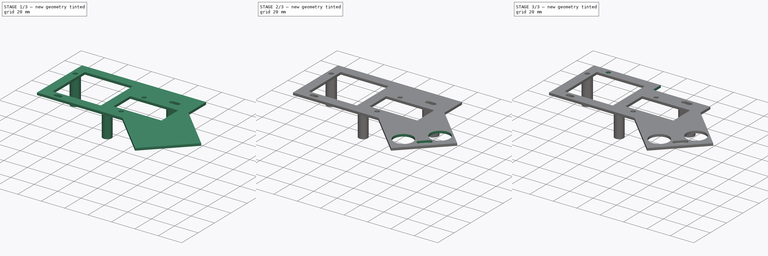
[diagram: build sequence overview — one tinted view per stage of 3, left to right]
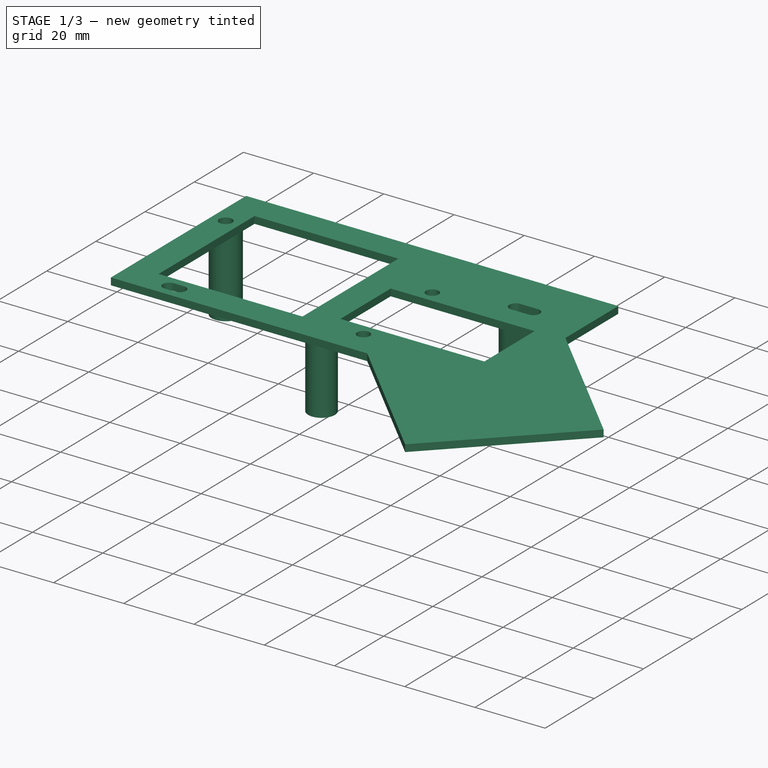
[diagram: stage 1 of 3 — iso view after this stage's code; geometry added in this stage tinted green]
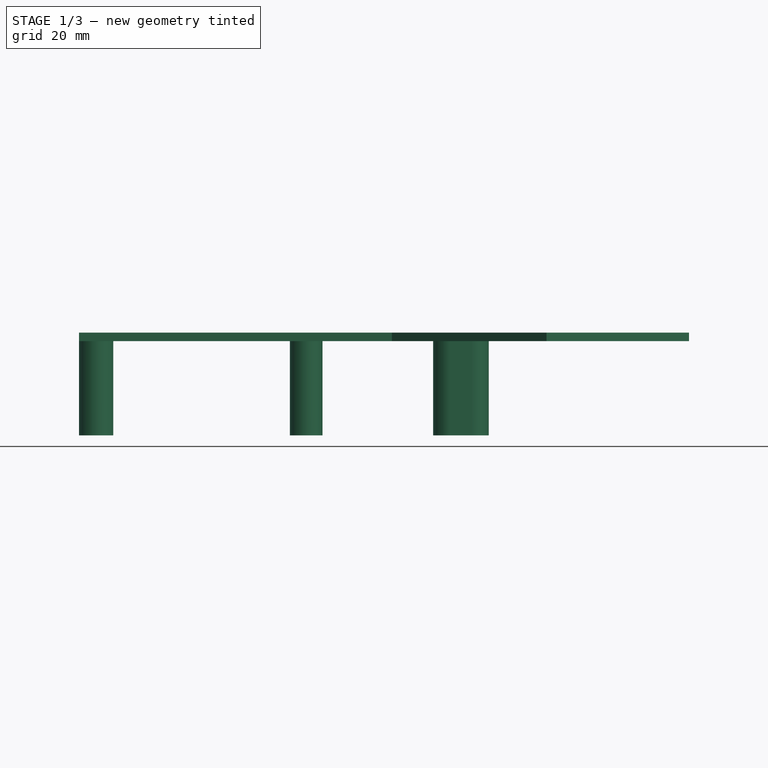
[diagram: stage 1 of 3 — front view after this stage's code; geometry added in this stage tinted green]
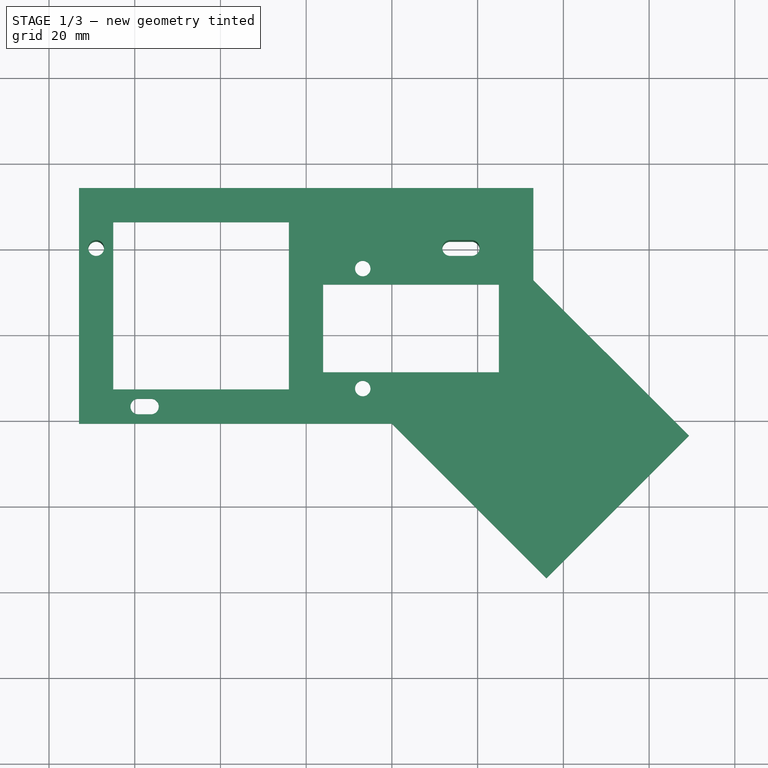
[diagram: stage 1 of 3 — top view after this stage's code; geometry added in this stage tinted green]
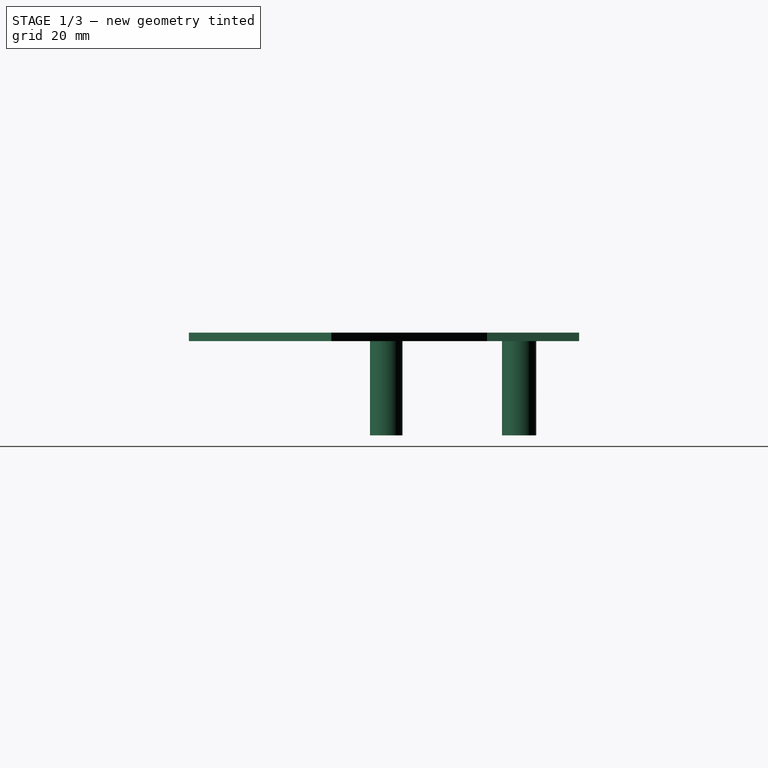
[diagram: stage 1 of 3 — right view after this stage's code; geometry added in this stage tinted green]
FCSTD DOCUMENT  (FreeCAD 0.14R3700 (Git))
Label: arduino platformv6
License: CC-BY 3.0
LicenseURL: http://creativecommons.org/licenses/by/3.0/
objects: Sketcher::SketchObject×5, PartDesign::Pocket×3, PartDesign::Pad×2
note: 15 computed .brp shape members not serialized (recipe doc carries the construction recipe); baked Part::Feature solids carry a one-line shape summary decoded from their .brp

FEATURE [Sketcher::SketchObject] Sketch
  sketch-geometry (27):
    g0: LineSegment StartX=-53 StartY=14 StartZ=0 EndX=53 EndY=14 EndZ=0
    g1: LineSegment StartX=-53 StartY=-41 StartZ=0 EndX=-53 EndY=14 EndZ=0
    g2: LineSegment StartX=-45 StartY=6 StartZ=0 EndX=-4.03755 EndY=6 EndZ=0
    g3: LineSegment StartX=44.9625 StartY=-29 StartZ=0 EndX=3.96245 EndY=-29 EndZ=0
    g4: LineSegment StartX=-45 StartY=-33 StartZ=0 EndX=-45 EndY=6 EndZ=0
    g5: Circle CenterX=-49 CenterY=0 CenterZ=0 NormalX=0 NormalY=0 NormalZ=1 Radius=1.85
    g6: LineSegment StartX=-4.03755 StartY=-33 StartZ=0 EndX=-4.03755 EndY=6 EndZ=0
    g7: LineSegment StartX=-4.03755 StartY=-33 StartZ=0 EndX=-45 EndY=-33 EndZ=0
    g8: LineSegment StartX=53 StartY=-7.5 StartZ=0 EndX=89.3075 EndY=-43.8075 EndZ=0
    g9: LineSegment StartX=89.3075 StartY=-43.8075 StartZ=0 EndX=56.0575 EndY=-77.0575 EndZ=0
    g10: LineSegment StartX=56.0575 StartY=-77.0575 StartZ=0 EndX=20 EndY=-41 EndZ=0
    g11: LineSegment StartX=-53 StartY=-41 StartZ=0 EndX=20 EndY=-41 EndZ=0
    g12: LineSegment StartX=53 StartY=14 StartZ=0 EndX=53 EndY=-7.5 EndZ=0
    g13: LineSegment StartX=3.96245 StartY=-8.537 StartZ=0 EndX=44.9625 EndY=-8.537 EndZ=0
    g14: LineSegment StartX=3.96245 StartY=-8.537 StartZ=0 EndX=3.96245 EndY=-29 EndZ=0
    g15: LineSegment StartX=44.9625 StartY=-8.537 StartZ=0 EndX=44.9625 EndY=-29 EndZ=0
    g16: GeomPoint [constr] X=21.1337 Y=29.9692 Z=0
    g17: ArcOfCircle CenterX=-39.2 CenterY=-37 CenterZ=0 NormalX=0 NormalY=0 NormalZ=1 Radius=1.8 StartAngle=1.5708 EndAngle=4.71239
    g18: ArcOfCircle CenterX=-36.2 CenterY=-37 CenterZ=0 NormalX=0 NormalY=0 NormalZ=1 Radius=1.8 StartAngle=4.71239 EndAngle=7.85398
    g19: LineSegment StartX=-39.2 StartY=-38.8 StartZ=0 EndX=-36.2 EndY=-38.8 EndZ=0
    g20: LineSegment StartX=-39.2 StartY=-35.2 StartZ=0 EndX=-36.2 EndY=-35.2 EndZ=0
    g21: Circle CenterX=13.2 CenterY=-32.8 CenterZ=0 NormalX=0 NormalY=0 NormalZ=1 Radius=1.8
    g22: Circle CenterX=13.2 CenterY=-4.8 CenterZ=0 NormalX=0 NormalY=0 NormalZ=1 Radius=1.8
    g23: ArcOfCircle CenterX=33.6 CenterY=0 CenterZ=0 NormalX=0 NormalY=0 NormalZ=1 Radius=1.85 StartAngle=1.5708 EndAngle=4.71239
    g24: ArcOfCircle CenterX=38.6 CenterY=0 CenterZ=0 NormalX=0 NormalY=0 NormalZ=1 Radius=1.85 StartAngle=4.71239 EndAngle=7.85398
    g25: LineSegment StartX=33.6 StartY=-1.85 StartZ=0 EndX=38.6 EndY=-1.85 EndZ=0
    g26: LineSegment StartX=33.6 StartY=1.85 StartZ=0 EndX=38.6 EndY=1.85 EndZ=0
  constraints (83):
    c: Coincident(g1,g0)
    c: Horizontal(g0)
    c: Vertical(g1)
    c: DistanceX(g0,g0) = 106
    c: DistanceX(g-1,g1) = -53
    c: Coincident(g7,g4)
    c: Coincident(g4,g2)
    c: Horizontal(g2)
    c: Horizontal(g3)
    c: Vertical(g4)
    c: DistanceX(g7,g1) = -8
    c: DistanceY(g1,g7) = 8
    c: DistanceY(g-1,g0) = 14
    c: Radius(g5) = 1.85
    c: DistanceX(g5,g2) = 4
    c: DistanceY(g-1,g5) = 0
    c: Vertical(g6)
    c: Equal(g4,g6)
    c: Equal(g7,g2)
    c: DistanceY(g2,g0) = 8
    c: DistanceX(g6,g3) = 8
    c: Coincident(g8,g9)
    c: Coincident(g9,g10)
    c: Angle(g9,g10) = 1.5708
    c: Horizontal(g7)
    c: Coincident(g6,g7)
    c: DistanceY(g0,g1) = -55
    c: Coincident(g10,g11)
    c: Coincident(g1,g11)
    c: Coincident(g8,g12)
    c: Coincident(g0,g12)
    c: Angle(g8,g12) = 2.35619
    c: Vertical(g12)
    c: Horizontal(g13)
    c: Vertical(g14)
    c: Coincident(g3,g14)
    c: Coincident(g3,g15)
    c: Coincident(g13,g15)
    c: Tangent(g17,g19)
    c: Tangent(g17,g20)
    c: Tangent(g18,g19)
    c: Tangent(g18,g20)
    c: Coincident(g17,g20)
    c: Coincident(g17,g19)
    c: Coincident(g19,g18)
    c: Coincident(g20,g18)
    c: Horizontal(g19)
    c: Equal(g17,g18)
    c: Radius(g17) = 1.8
    c: DistanceX(g1,g17) = 13.8
    c: DistanceX(g17,g18) = 3
    c: Radius(g21) = 1.8
    c: DistanceY(g21,g10) = -8.2
    c: DistanceX(g17,g21) = 52.4
    c: Radius(g22) = 1.8
    c: DistanceY(g21,g22) = 28
    c: DistanceX(g21,g22) = 0
    c: Coincident(g13,g14)
    c: DistanceY(g13,g3) = -20.463
    c: Vertical(g15)
    c: Equal(g14,g15)
    c: Equal(g13,g3)
    c: DistanceX(g13,g13) = 41
    c: Horizontal(g11)
    c: DistanceY(g8,g0) = 21.5
    c: DistanceX(g1,g10) = 73
    c: Angle(g11,g10) = 2.35619
    c: Tangent(g23,g25)
    c: Tangent(g23,g26)
    c: Tangent(g24,g25)
    c: Tangent(g24,g26)
    c: Coincident(g23,g26)
    c: Coincident(g23,g25)
    c: Coincident(g25,g24)
    c: Coincident(g26,g24)
    c: Horizontal(g25)
    c: Equal(g23,g24)
    c: Radius(g24) = 1.85
    c: DistanceX(g23,g24) = 5
    c: DistanceX(g24,g5) = -87.6
    c: DistanceY(g23,g5) = 0
    c: DistanceY(g17,g22) = 32.2
    c: DistanceY(g3,g1) = -12
FEATURE [PartDesign::Pad] Pad
  Length = 2
  Length2 = 20
  Sketch = -> Sketch
  Type = 0
FEATURE [Sketcher::SketchObject] Sketch001
  Placement = pos=(0,0,0) rot=(1,0,0;3.14159rad)
  Support = -> Pad [Face27]
  sketch-geometry (11):
    g0: Circle CenterX=0 CenterY=31 CenterZ=0 NormalX=0 NormalY=0 NormalZ=1 Radius=3.8
    g1: Circle CenterX=-49 CenterY=0 CenterZ=0 NormalX=0 NormalY=0 NormalZ=1 Radius=4
    g2: Circle CenterX=-49 CenterY=0 CenterZ=0 NormalX=0 NormalY=0 NormalZ=1 Radius=1.85
    g3: ArcOfCircle CenterX=33.6 CenterY=0 CenterZ=0 NormalX=0 NormalY=0 NormalZ=1 Radius=1.85 StartAngle=1.5708 EndAngle=4.71239
    g4: ArcOfCircle CenterX=38.6 CenterY=0 CenterZ=0 NormalX=0 NormalY=0 NormalZ=1 Radius=1.85 StartAngle=4.71238 EndAngle=7.85399
    g5: LineSegment StartX=33.6 StartY=-1.85 StartZ=0 EndX=38.6 EndY=-1.85 EndZ=0
    g6: LineSegment StartX=33.6 StartY=1.85 StartZ=0 EndX=38.6 EndY=1.85 EndZ=0
    g7: ArcOfCircle CenterX=33.6 CenterY=0 CenterZ=0 NormalX=0 NormalY=0 NormalZ=1 Radius=4 StartAngle=1.5708 EndAngle=4.71239
    g8: ArcOfCircle CenterX=38.6 CenterY=0 CenterZ=0 NormalX=0 NormalY=0 NormalZ=1 Radius=4 StartAngle=4.71239 EndAngle=7.85398
    g9: LineSegment StartX=33.6 StartY=-4 StartZ=0 EndX=38.6 EndY=-4 EndZ=0
    g10: LineSegment StartX=33.6 StartY=4 StartZ=0 EndX=38.6 EndY=4 EndZ=0
  constraints (35):
    c: Radius(g0) = 3.8
    c: DistanceY(g-1,g0) = 31
    c: DistanceX(g-1,g0) = 0
    c: Radius(g1) = 4
    c: Radius(g2) = 1.85
    c: Coincident(g2,g1)
    c: DistanceX(g1) = -49
    c: DistanceY(g1) = 0
    c: Tangent(g3,g5)
    c: Tangent(g3,g6)
    c: Tangent(g4,g5)
    c: Tangent(g4,g6)
    c: Coincident(g3,g6)
    c: Coincident(g3,g5)
    c: Coincident(g5,g4)
    c: Coincident(g6,g4)
    c: Horizontal(g5)
    c: Equal(g3,g4)
    c: DistanceX(g3,g4) = 5
    c: Radius(g3) = 1.85
    c: Tangent(g7,g9)
    c: Tangent(g7,g10)
    c: Tangent(g8,g9)
    c: Tangent(g8,g10)
    c: Coincident(g7,g10)
    c: Coincident(g7,g9)
    c: Coincident(g9,g8)
    c: Coincident(g10,g8)
    c: Horizontal(g9)
    c: Equal(g7,g8)
    c: Radius(g8) = 4
    c: DistanceX(g8,g7) = -5
    c: Coincident(g7,g3)
    c: DistanceX(g4,g1) = -87.6
    c: DistanceY(g3,g1) = 0
FEATURE [PartDesign::Pad] Pad001
  Length = 22
  Length2 = 20
  Sketch = -> Sketch001
  Type = 0
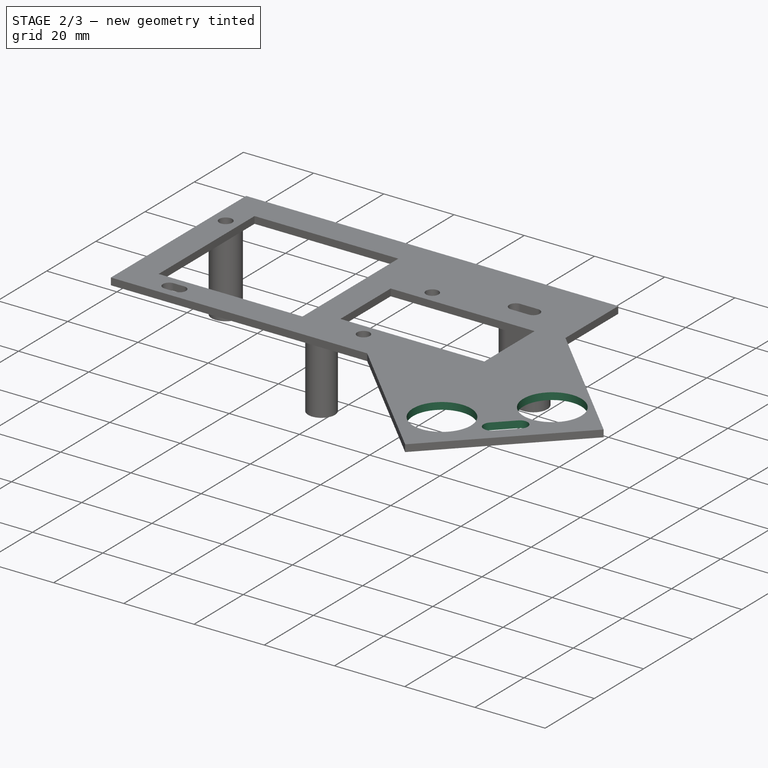
[diagram: stage 2 of 3 — iso view after this stage's code; geometry added in this stage tinted green]
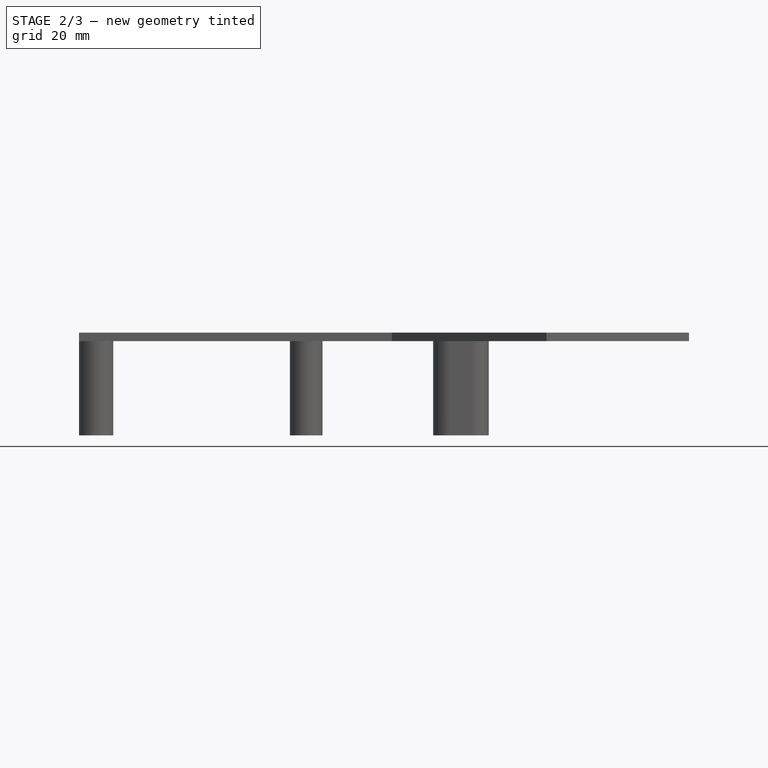
[diagram: stage 2 of 3 — front view after this stage's code; geometry added in this stage tinted green]
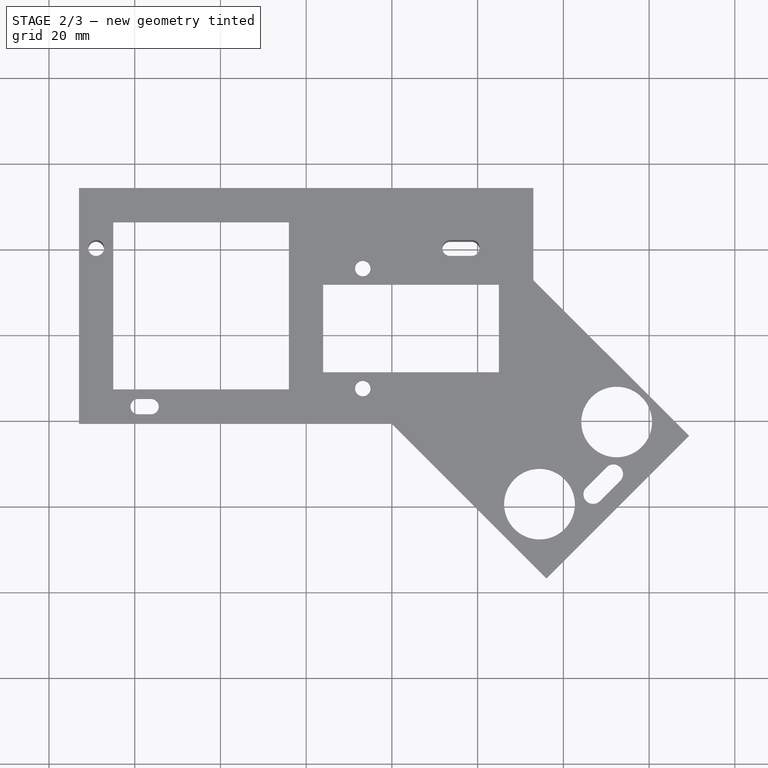
[diagram: stage 2 of 3 — top view after this stage's code; geometry added in this stage tinted green]
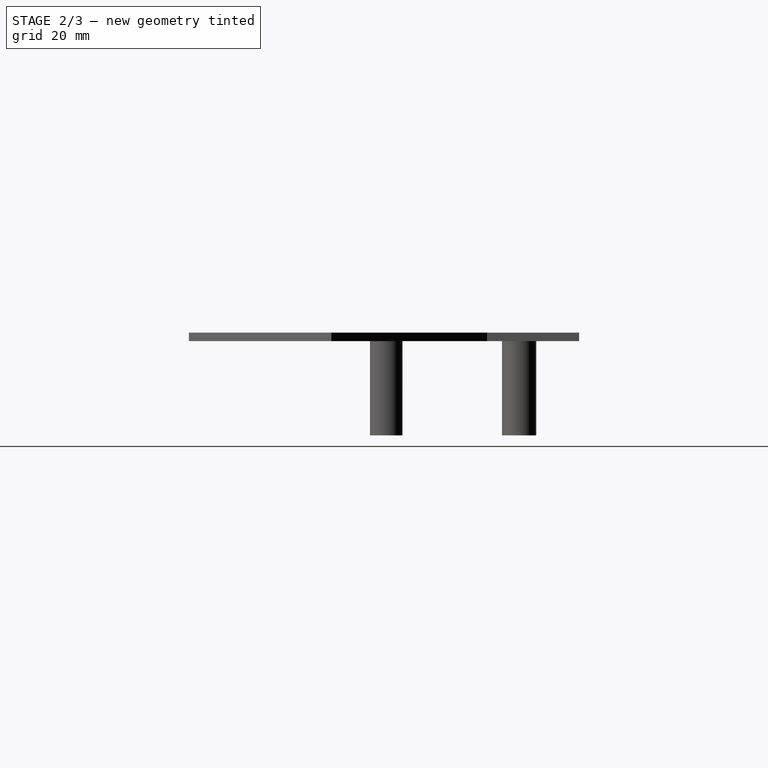
[diagram: stage 2 of 3 — right view after this stage's code; geometry added in this stage tinted green]
FEATURE [Sketcher::SketchObject] Sketch002
  Placement = pos=(0,0,2) rot=(0,0,1;0rad)
  Support = -> Pad001 [Face5]
  sketch-geometry (8):
    g0: Circle CenterX=54.4328 CenterY=-59.7562 CenterZ=0 NormalX=0 NormalY=0 NormalZ=1 Radius=8.25
    g1: Circle CenterX=72.4338 CenterY=-40.5819 CenterZ=0 NormalX=0 NormalY=0 NormalZ=1 Radius=8.25
    g2: ArcOfCircle CenterX=66.9328 CenterY=-57.4562 CenterZ=0 NormalX=0 NormalY=0 NormalZ=1 Radius=2.25 StartAngle=2.35619 EndAngle=5.49779
    g3: ArcOfCircle CenterX=71.6704 CenterY=-52.7186 CenterZ=0 NormalX=0 NormalY=0 NormalZ=1 Radius=2.25 StartAngle=5.49779 EndAngle=8.63938
    g4: LineSegment StartX=68.5238 StartY=-59.0472 StartZ=0 EndX=73.2614 EndY=-54.3096 EndZ=0
    g5: LineSegment StartX=65.3418 StartY=-55.8652 StartZ=0 EndX=70.0794 EndY=-51.1276 EndZ=0
    g6: LineSegment [constr] StartX=66.9328 StartY=-57.4562 StartZ=0 EndX=71.6704 EndY=-52.7186 EndZ=0
    g7: LineSegment [constr] StartX=66.9328 StartY=-57.4562 StartZ=0 EndX=90.4603 EndY=-57.4562 EndZ=0
  constraints (24):
    c: DistanceX(g0) = 54.4328
    c: DistanceY(g0) = -59.7562
    c: Radius(g0) = 8.25
    c: Radius(g1) = 8.25
    c: Tangent(g2,g4)
    c: Tangent(g2,g5)
    c: Tangent(g3,g4)
    c: Tangent(g3,g5)
    c: Coincident(g2,g5)
    c: Coincident(g2,g4)
    c: Coincident(g4,g3)
    c: Coincident(g5,g3)
    c: Equal(g2,g3)
    c: Distance(g2,g3) = 6.7
    c: Radius(g2) = 2.25
    c: Angle(g7,g6) = 0.785398
    c: Horizontal(g7)
    c: Coincident(g6,g7)
    c: Coincident(g2,g6)
    c: Coincident(g3,g6)
    c: DistanceY(g0,g2) = 2.3
    c: DistanceX(g0,g2) = 12.5
    c: DistanceX(g0,g1) = 18.001
    c: DistanceY(g1,g0) = -19.1743
FEATURE [PartDesign::Pocket] Pocket
  Length = 5
  Sketch = -> Sketch002
  Type = 0
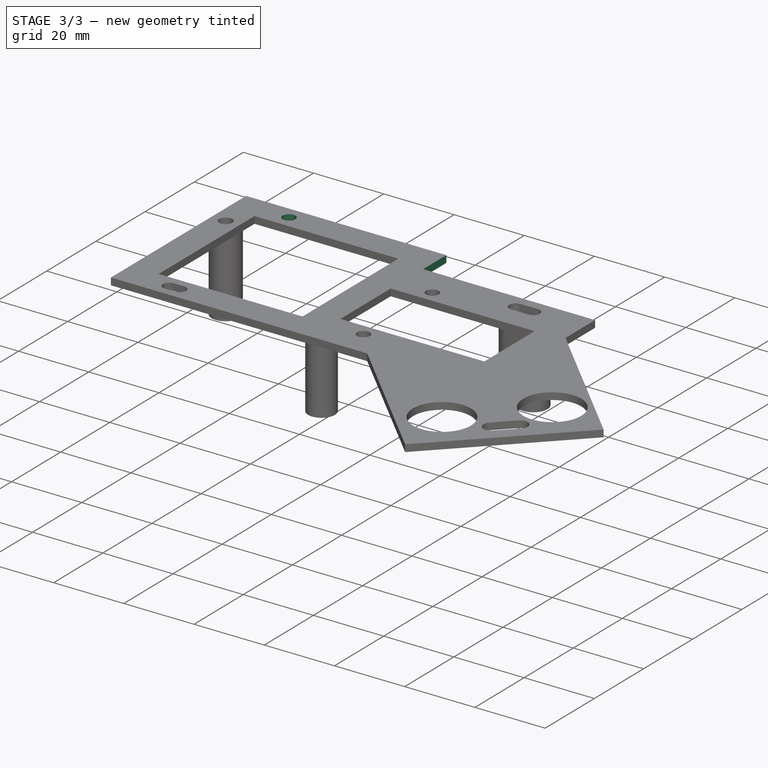
[diagram: stage 3 of 3 — iso view after this stage's code; geometry added in this stage tinted green]
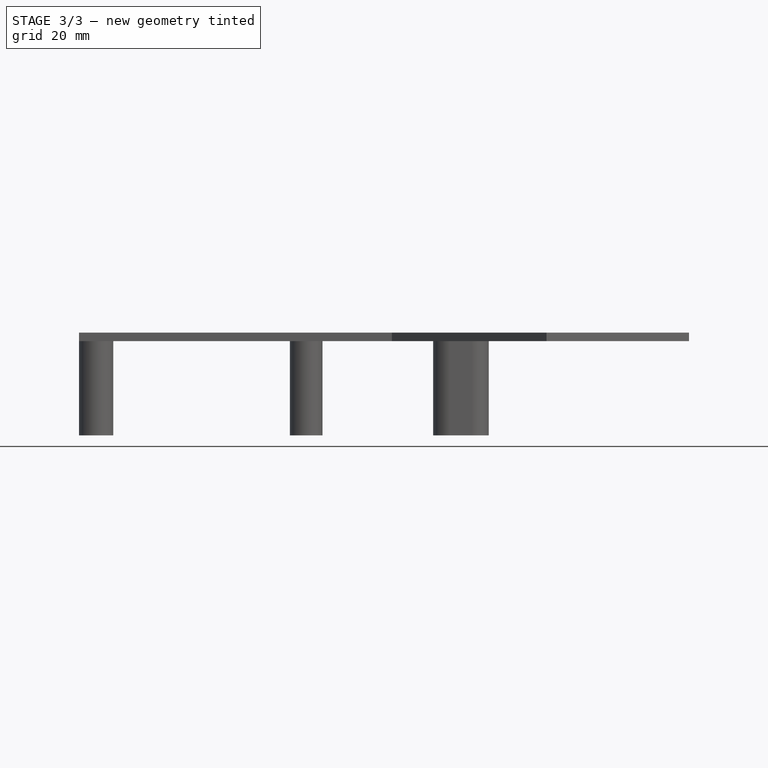
[diagram: stage 3 of 3 — front view after this stage's code; geometry added in this stage tinted green]
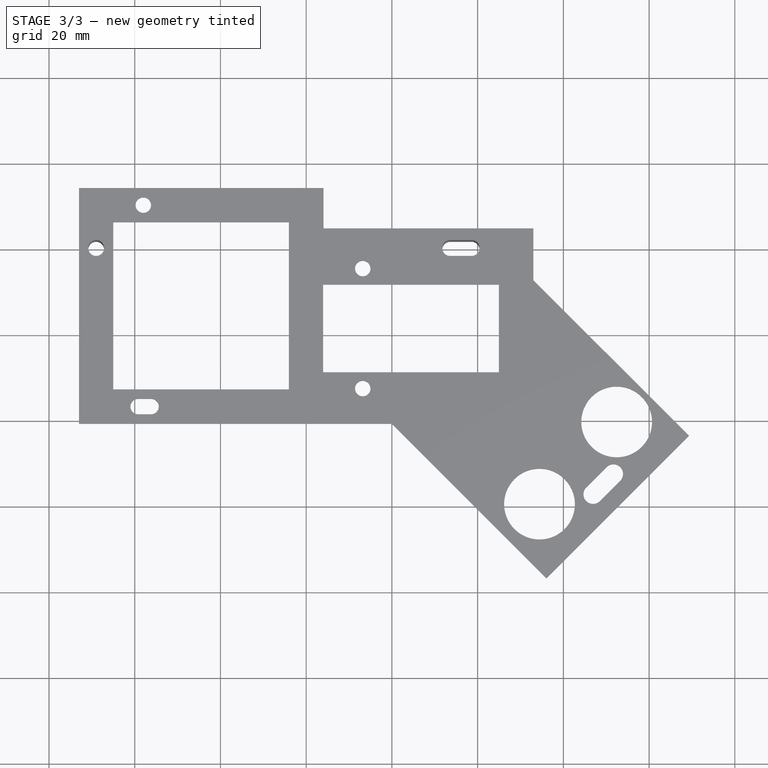
[diagram: stage 3 of 3 — top view after this stage's code; geometry added in this stage tinted green]
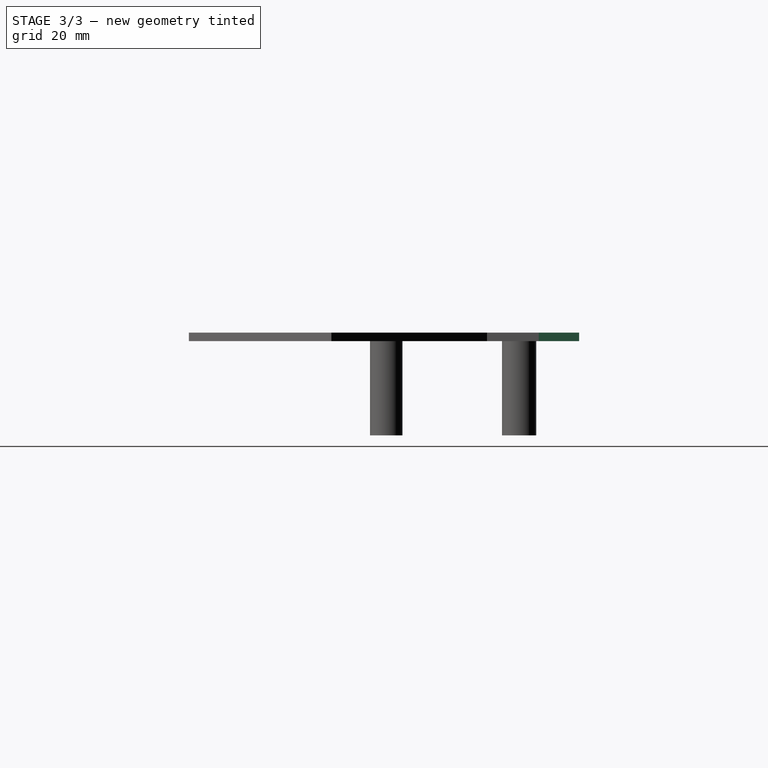
[diagram: stage 3 of 3 — right view after this stage's code; geometry added in this stage tinted green]
FEATURE [Sketcher::SketchObject] Sketch003
  Placement = pos=(0,0,2) rot=(0,0,1;0rad)
  Support = -> Pocket [Face5]
  sketch-geometry (1):
    g0: Circle CenterX=-38 CenterY=10 CenterZ=0 NormalX=0 NormalY=0 NormalZ=1 Radius=1.8
  constraints (3):
    c: Radius(g0) = 1.8
    c: DistanceX(g-1,g0) = -38
    c: DistanceY(g-1,g0) = 10
FEATURE [PartDesign::Pocket] Pocket001
  Length = 5
  Sketch = -> Sketch003
  Type = 0
FEATURE [Sketcher::SketchObject] Sketch004
  Placement = pos=(0,0,2) rot=(0,0,1;0rad)
  Support = -> Pocket001 [Face5]
  sketch-geometry (4):
    g0: LineSegment StartX=4.02824 StartY=16.0657 StartZ=0 EndX=57.3383 EndY=16.0657 EndZ=0
    g1: LineSegment StartX=57.3383 StartY=16.0657 StartZ=0 EndX=57.3383 EndY=4.56569 EndZ=0
    g2: LineSegment StartX=57.3383 StartY=4.56569 StartZ=0 EndX=4.02824 EndY=4.56569 EndZ=0
    g3: LineSegment StartX=4.02824 StartY=4.56569 StartZ=0 EndX=4.02824 EndY=16.0657 EndZ=0
  constraints (9):
    c: Coincident(g0,g1)
    c: Coincident(g1,g2)
    c: Coincident(g2,g3)
    c: Coincident(g3,g0)
    c: Horizontal(g0)
    c: Horizontal(g2)
    c: Vertical(g1)
    c: Vertical(g3)
    c: DistanceY(g1) = -11.5
FEATURE [PartDesign::Pocket] Pocket002
  Length = 5
  Sketch = -> Sketch004
  Type = 0
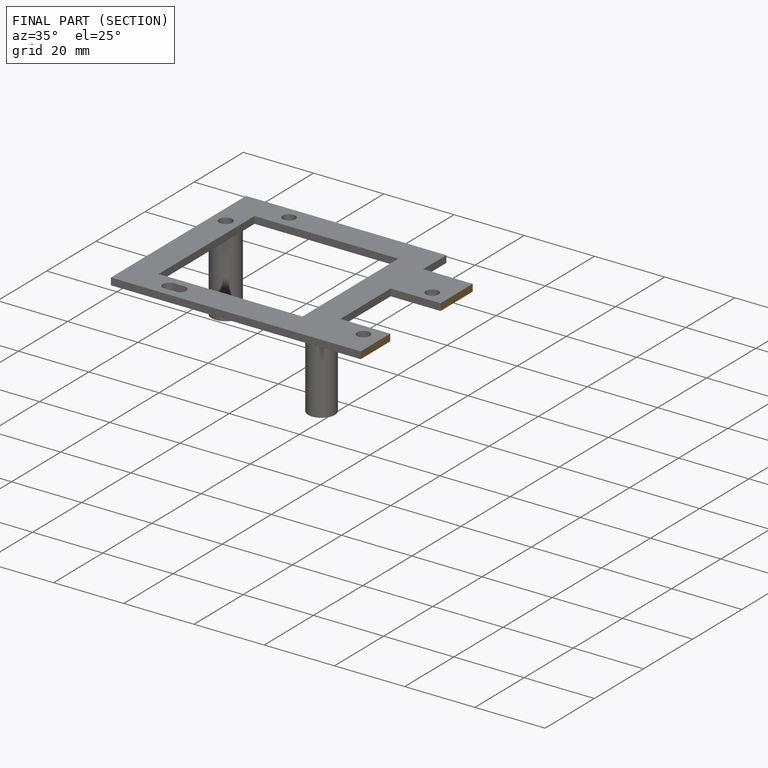
[diagram: finished part — half-section view (interior)]
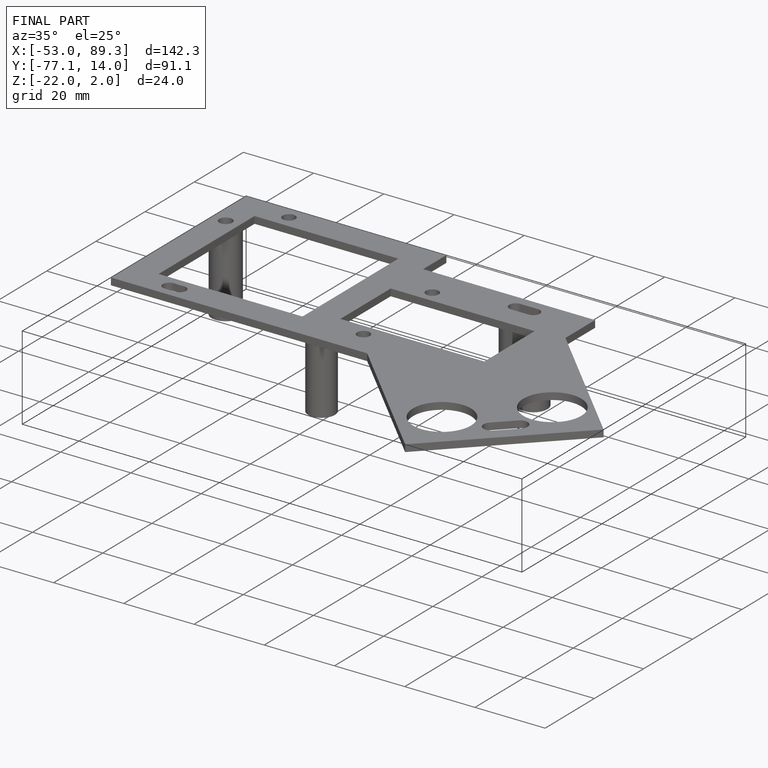
[diagram: finished part — iso view with bounding-box wireframe]
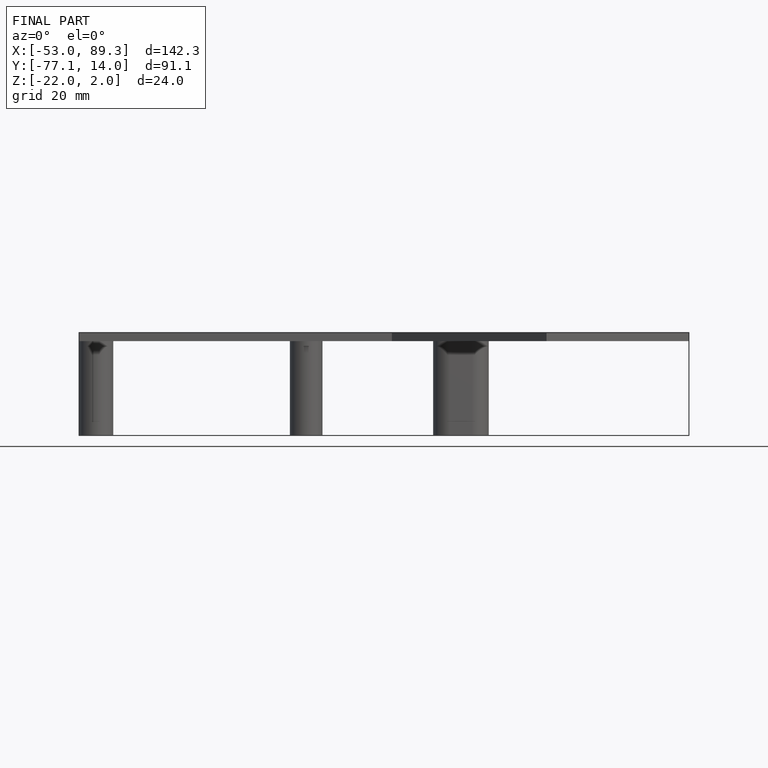
[diagram: finished part — front view with bounding-box wireframe]
